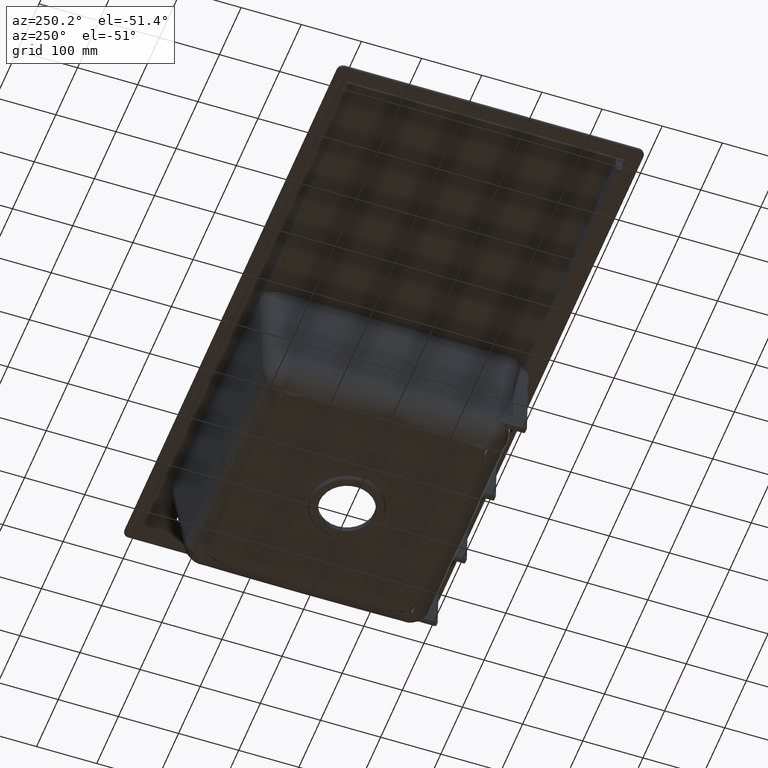
[diagram: clean part render]
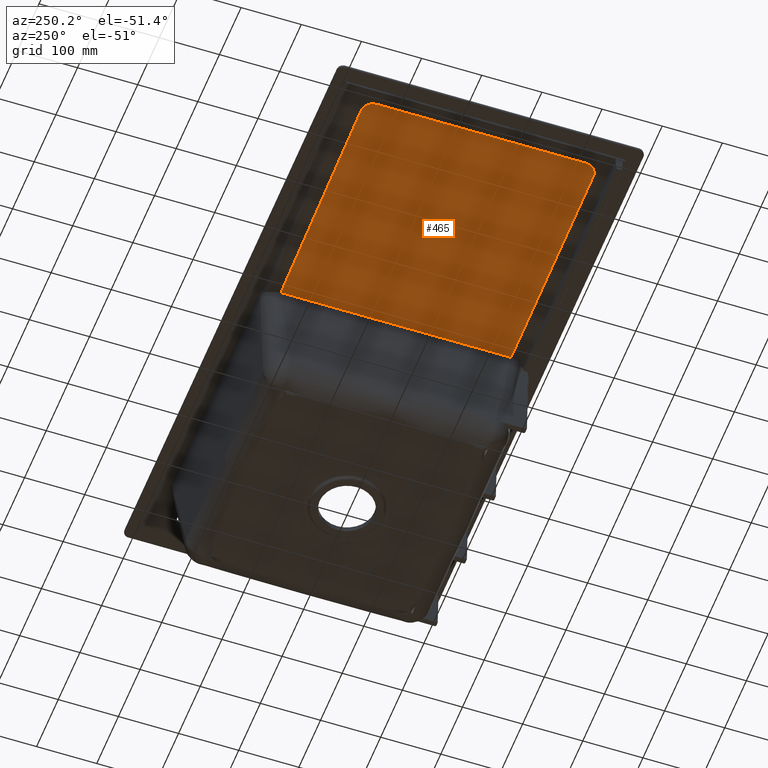
[diagram: same view with one face highlighted and labeled with its STEP entity id]
A machine part, auxiliary view. The second image highlights one B-rep face of the part: STEP entity #465.
In plain terms, the highlighted planar face has unit normal (-0.0349, 0, -0.9994).
Its self-contained STEP definition (entity closure, byte-faithful):
#465=ADVANCED_FACE('',(#700),#544,.T.);
#544=PLANE('',#3410);
#700=FACE_OUTER_BOUND('',#911,.T.);
#911=EDGE_LOOP('',(#2059,#2060,#2061,#2062,#2063,#2064,#2065));
#1111=B_SPLINE_CURVE_WITH_KNOTS('',3,(#10906,#10907,#10908,#10909,#10910,
#10911,#10912,#10913),.UNSPECIFIED.,.F.,.F.,(4,2,2,4),(0.,0.500000000000004,
0.750000000000002,1.),.UNSPECIFIED.);
#1114=B_SPLINE_CURVE_WITH_KNOTS('',3,(#10949,#10950,#10951,#10952,#10953,
#10954),.UNSPECIFIED.,.F.,.F.,(4,2,4),(0.,0.5,1.),.UNSPECIFIED.);
#2059=ORIENTED_EDGE('',*,*,#2994,.F.);
#2060=ORIENTED_EDGE('',*,*,#2613,.T.);
#2061=ORIENTED_EDGE('',*,*,#2800,.T.);
#2062=ORIENTED_EDGE('',*,*,#2799,.F.);
#2063=ORIENTED_EDGE('',*,*,#2576,.F.);
#2064=ORIENTED_EDGE('',*,*,#2807,.F.);
#2065=ORIENTED_EDGE('',*,*,#2806,.F.);
#2267=VERTEX_POINT('',#4013);
#2268=VERTEX_POINT('',#4015);
#2301=VERTEX_POINT('',#4248);
#2302=VERTEX_POINT('',#4250);
#2438=VERTEX_POINT('',#10905);
#2442=VERTEX_POINT('',#10948);
#2443=VERTEX_POINT('',#10955);
#2576=EDGE_CURVE('',#2267,#2268,#3067,.T.);
#2613=EDGE_CURVE('',#2302,#2301,#3085,.T.);
#2799=EDGE_CURVE('',#2268,#2438,#3126,.T.);
#2800=EDGE_CURVE('',#2301,#2438,#1111,.T.);
#2806=EDGE_CURVE('',#2442,#2443,#1114,.T.);
#2807=EDGE_CURVE('',#2443,#2267,#3130,.T.);
#2994=EDGE_CURVE('',#2302,#2442,#3151,.T.);
#3067=LINE('',#4014,#3186);
#3085=LINE('',#4249,#3204);
#3126=LINE('',#10904,#3245);
#3130=LINE('',#10956,#3249);
#3151=LINE('',#18927,#3274);
#3186=VECTOR('',#3492,1.);
#3204=VECTOR('',#3524,1.);
#3245=VECTOR('',#3667,1.);
#3249=VECTOR('',#3673,1.);
#3274=VECTOR('',#3796,1.);
#3410=AXIS2_PLACEMENT_3D('',#18928,#3797,#3798);
#3492=DIRECTION('',(-1.16457657195417E-15,1.,4.06679100247035E-17));
#3524=DIRECTION('',(0.,1.,0.));
#3667=DIRECTION('',(-0.999379071657987,0.00485024893040436,0.0348990861962454));
#3673=DIRECTION('',(0.999379071657989,0.00485024892999877,-0.0348990861962473));
#3796=DIRECTION('',(0.,-1.,0.));
#3797=DIRECTION('',(-0.0348994967025028,0.,-0.999390827019096));
#3798=DIRECTION('',(0.999390827019096,0.,-0.0348994967025028));
#4013=CARTESIAN_POINT('',(-226.258946864343,-191.364094257252,-27.6260931517628));
#4014=CARTESIAN_POINT('',(-226.258946864342,10.2435732393619,-27.6260931517656));
#4015=CARTESIAN_POINT('',(-226.258946864343,191.364094258765,-27.6260931517656));
#4248=CARTESIAN_POINT('',(-621.241455903713,173.332069658722,-13.8330000003289));
#4249=CARTESIAN_POINT('',(-621.241455903734,-211.374312183514,-13.8330000003289));
#4250=CARTESIAN_POINT('',(-621.241455903713,0.,-13.8330000003289));
#10904=CARTESIAN_POINT('',(-206.026370551286,191.265900255704,-28.332630285418));
#10905=CARTESIAN_POINT('',(-601.345139600864,193.184485996719,-14.5277946756763));
#10906=CARTESIAN_POINT('',(-621.241455803311,173.333131514582,-13.833000003835));
#10907=CARTESIAN_POINT('',(-621.240655605872,178.642156147596,-13.8330279473453));
#10908=CARTESIAN_POINT('',(-619.154932201647,183.705162382656,-13.9058630135678));
#10909=CARTESIAN_POINT('',(-613.56662955423,189.281963910523,-14.1010108421684));
#10910=CARTESIAN_POINT('',(-611.410045141303,190.714026212692,-14.1763204293417));
#10911=CARTESIAN_POINT('',(-606.524556207971,192.709125632538,-14.3469254622371));
#10912=CARTESIAN_POINT('',(-603.990960981673,193.197185949292,-14.43540055712));
#10913=CARTESIAN_POINT('',(-601.345139600864,193.184485996719,-14.5277946756756));
#10948=CARTESIAN_POINT('',(-621.241455903734,-173.331076308041,-13.8330000003281));
#10949=CARTESIAN_POINT('',(-621.241455903734,-173.33107630804,-13.8330000003289));
#10950=CARTESIAN_POINT('',(-621.241455903733,-178.626742647175,-13.8330000003289));
#10951=CARTESIAN_POINT('',(-619.167274459038,-183.686267871121,-13.9054320124432));
#10952=CARTESIAN_POINT('',(-611.715366317357,-191.135973163114,-14.1656583789325));
#10953=CARTESIAN_POINT('',(-606.649541643299,-193.210229650362,-14.3425608746609));
#10954=CARTESIAN_POINT('',(-601.345139600844,-193.184485995066,-14.527794675677));
#10955=CARTESIAN_POINT('',(-601.345139600844,-193.184485995066,-14.5277946756763));
#10956=CARTESIAN_POINT('',(-206.026370551299,-191.265900254212,-28.3326302854177));
#18927=CARTESIAN_POINT('',(-621.241455903734,-211.374312183514,-13.8330000003289));
#18928=CARTESIAN_POINT('',(-423.833007968022,13.2770764264917,-20.7266549064152));